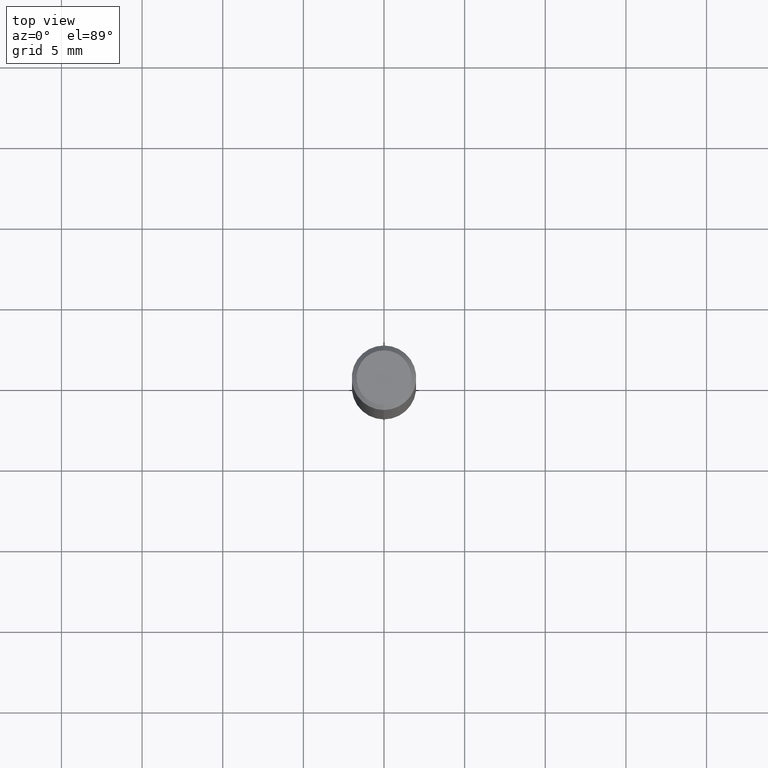
[diagram: clean part render]
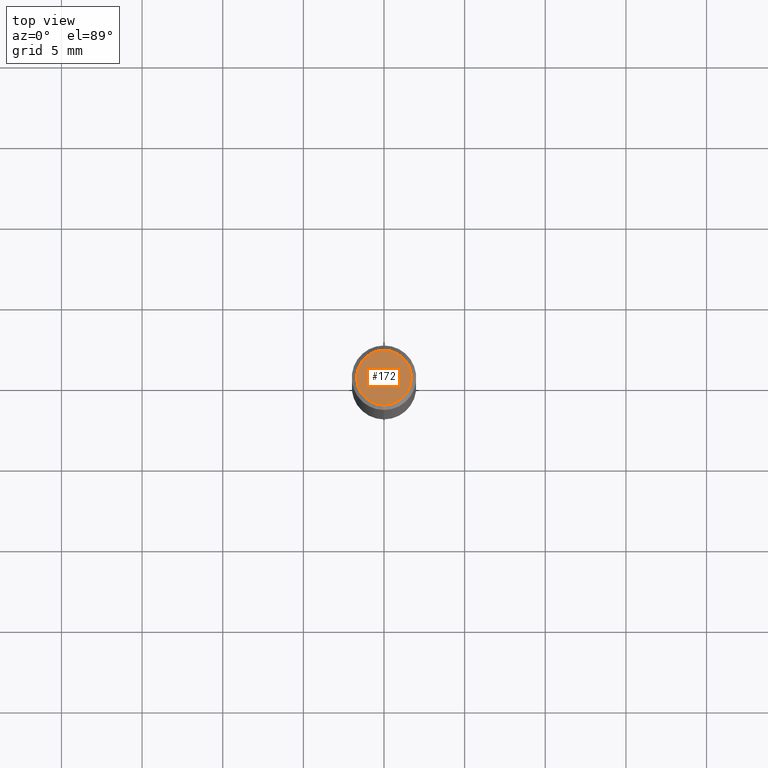
[diagram: same view with one face highlighted and labeled with its STEP entity id]
A machine part, top view. The second image highlights one B-rep face of the part: STEP entity #172.
In plain terms, the highlighted planar face has unit normal (-0, 0, 1).
Its self-contained STEP definition (entity closure, byte-faithful):
#116=EDGE_CURVE('',#176,#146,#259,.T.);
#146=VERTEX_POINT('',#292);
#172=ADVANCED_FACE('',(#321),#322,.T.);
#176=VERTEX_POINT('',#327);
#214=EDGE_CURVE('',#146,#176,#372,.T.);
#259=CIRCLE('',#415,1.7);
#292=CARTESIAN_POINT('',(0.0,1.7,0.0));
#321=FACE_OUTER_BOUND('',#494,.T.);
#322=PLANE('',#495);
#327=CARTESIAN_POINT('',(2.08183080149804E-016,-1.7,0.0));
#372=CIRCLE('',#557,1.7);
#415=AXIS2_PLACEMENT_3D('',#585,#586,#587);
#494=EDGE_LOOP('',(#667,#668));
#495=AXIS2_PLACEMENT_3D('',#669,#670,#671);
#557=AXIS2_PLACEMENT_3D('',#737,#738,#739);
#585=CARTESIAN_POINT('',(0.0,0.0,0.0));
#586=DIRECTION('',(0.0,0.0,-1.0));
#587=DIRECTION('',(0.0,1.0,0.0));
#667=ORIENTED_EDGE('',*,*,#214,.F.);
#668=ORIENTED_EDGE('',*,*,#116,.F.);
#669=CARTESIAN_POINT('',(0.0,0.85,0.0));
#670=DIRECTION('',(-0.0,0.0,1.0));
#671=DIRECTION('',(0.0,-1.0,0.0));
#737=CARTESIAN_POINT('',(0.0,0.0,0.0));
#738=DIRECTION('',(0.0,0.0,-1.0));
#739=DIRECTION('',(0.0,1.0,0.0));